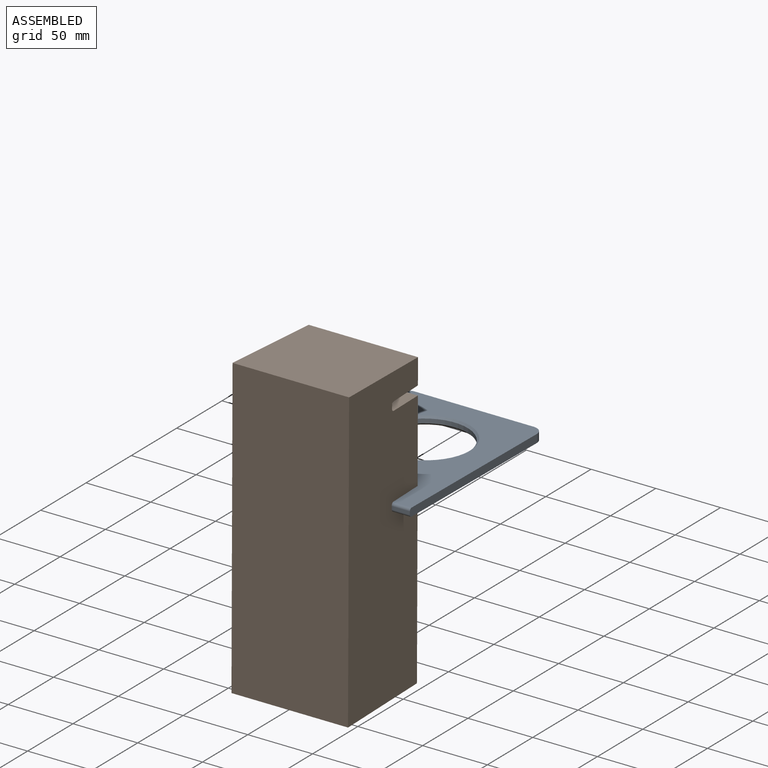
[diagram: assembled view]
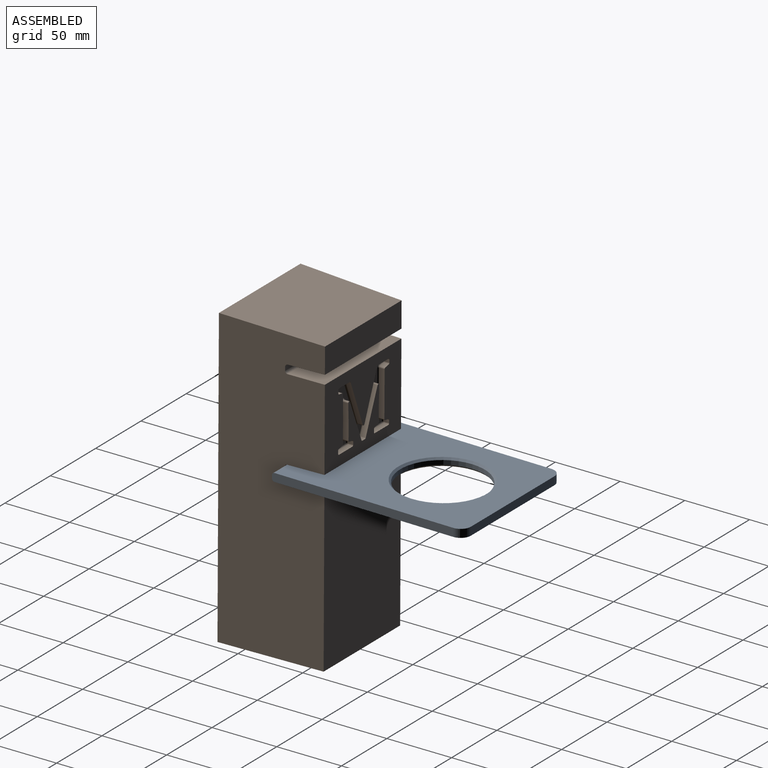
[diagram: assembled view, second angle]
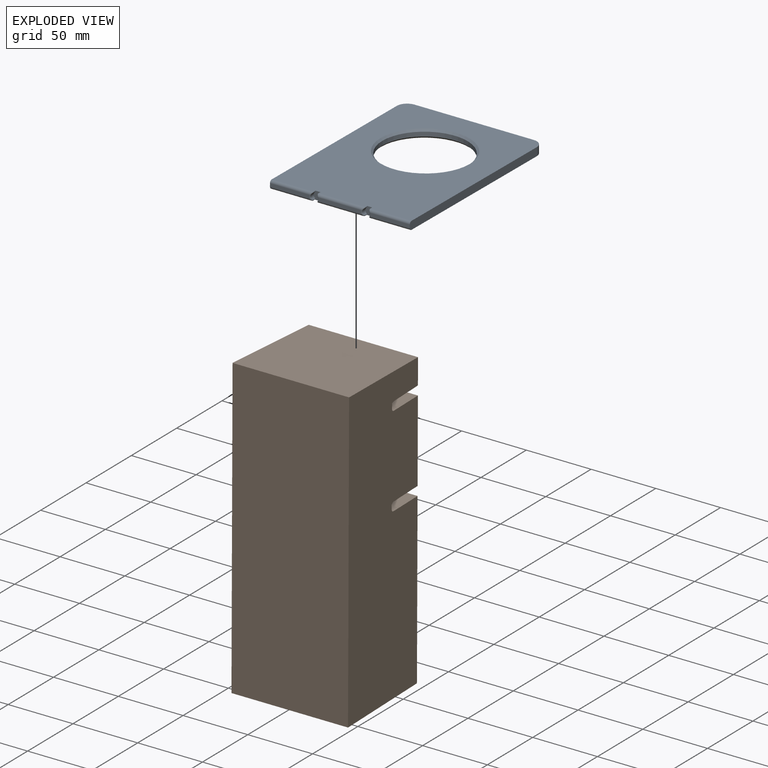
[diagram: exploded view]
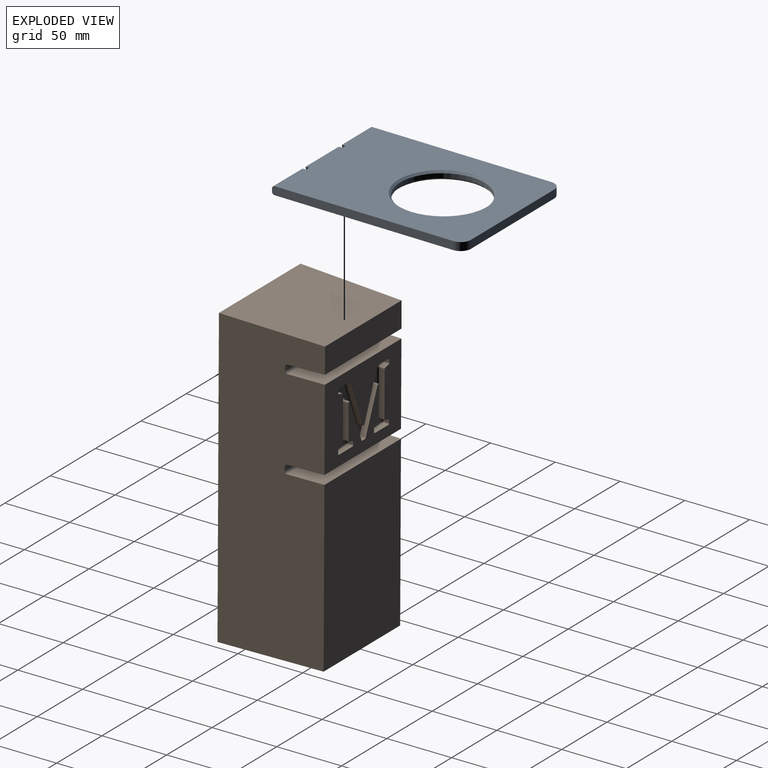
[diagram: exploded view, second angle]
ASSEMBLY  parts=2 mates=2
PART A: 61 faces, bbox 108x148x6.3 mm
  f0: plane 33.39x2.3mm, normal (0,1,0), area 76.2mm2, adj f5,f8,f43,f50
  f1: plane 30.69x2.3mm, normal (0,1,0), area 70.3mm2, adj f6,f11,f14,f36
  f2: plane 30.69x2.3mm, normal (0,1,0), area 70.3mm2, adj f7,f9,f12,f57
  f3: plane 146x108mm, normal (0,0,1), area 12036.8mm2, adj f8,f9,f10,f11,f12,f14,f15,f16
  f4: plane 146x108mm, normal (0,0,-1), area 12036.8mm2, adj f5,f6,f7,f10,f11,f12,f15,f16
  f5: cylinder r=2mm len=35.4mm, axis (-1,0,0), area 108.5mm2, adj f0,f4,f44,f45,f51,f52
  f6: cylinder r=2mm len=31.7mm, axis (-1,0,0), area 98.2mm2, adj f1,f4,f11,f37,f38
  f7: cylinder r=2mm len=31.7mm, axis (-1,0,0), area 98.2mm2, adj f2,f4,f12,f58,f59
  f8: cylinder r=2mm len=35.4mm, axis (1,0,0), area 108.5mm2, adj f0,f3,f41,f42,f48,f49
  f9: cylinder r=2mm len=31.7mm, axis (1,0,0), area 98.2mm2, adj f2,f3,f12,f55,f56
  f10: plane 92x6.3mm, normal (0,-1,0), area 579.6mm2, adj f3,f4,f15,f16
  f11: plane 140x6.3mm, normal (1,0,0), area 880.3mm2, adj f1,f3,f4,f6,f14,f15
  f12: plane 140x6.3mm, normal (-1,0,0), area 880.3mm2, adj f2,f3,f4,f7,f9,f16
  f13: cylinder r=32.75mm len=65.5mm, axis (0,0,-1), area 679.1mm2, adj f17,f18
  f14: cylinder r=2mm len=31.7mm, axis (1,0,0), area 98.2mm2, adj f1,f3,f11,f34,f35
  f15: cylinder r=8mm len=8mm, axis (0,0,1), area 79.2mm2, adj f3,f4,f10,f11
  f16: cylinder r=8mm len=8mm, axis (0,0,-1), area 79.2mm2, adj f3,f4,f10,f12
  f17: cone r=34.25mm half-angle=45deg, axis (0,0,-1), area 446.5mm2, adj f4,f13
  f18: cone r=32.75mm half-angle=45deg, axis (0,0,1), area 446.5mm2, adj f3,f13
  f19: plane 6.3x6mm, normal (0,1,0), area 31mm2, adj f3,f4,f20,f21,f22,f23,f24,f25
  f20: plane 2.7x0.18mm, normal (-0.71,0,0.71), area 0.6mm2, adj f19,f25,f45,f46
  f21: plane 2.7x0.18mm, normal (0.71,0,0.71), area 0.6mm2, adj f19,f22,f59,f60
  f22: cylinder r=3mm len=4.24mm, axis (0,1,0), area 15.8mm2, adj f19,f21,f23,f56,f57,f58
  f23: plane 2.7x0.18mm, normal (0.71,0,-0.71), area 0.6mm2, adj f19,f22,f54,f55
  f24: plane 2.7x0.18mm, normal (-0.71,0,-0.71), area 0.6mm2, adj f19,f25,f40,f41
  f25: cylinder r=3mm len=4.24mm, axis (0,1,0), area 15.8mm2, adj f19,f20,f24,f42,f43,f44
  f26: plane 6.3x6mm, normal (0,1,0), area 31mm2, adj f3,f4,f27,f28,f29,f30,f31,f32
  f27: plane 2.7x0.18mm, normal (0.71,0,0.71), area 0.6mm2, adj f26,f29,f52,f53
  f28: plane 2.7x0.18mm, normal (-0.71,0,0.71), area 0.6mm2, adj f26,f32,f38,f39
  f29: cylinder r=3mm len=4.24mm, axis (0,1,0), area 15.8mm2, adj f26,f27,f30,f49,f50,f51
  f30: plane 2.7x0.18mm, normal (0.71,0,-0.71), area 0.6mm2, adj f26,f29,f47,f48
  f31: plane 2.7x0.18mm, normal (-0.71,0,-0.71), area 0.6mm2, adj f26,f32,f33,f34
  f32: cylinder r=3mm len=4.24mm, axis (0,1,0), area 15.8mm2, adj f26,f28,f31,f35,f36,f37
  f33: cylinder r=0.5mm len=2mm, axis (0,-1,0), area 2.4mm2, adj f3,f26,f31,f34
  f34: bspline ~1.62x1.44mm, area 1.2mm2, adj f14,f31,f33,f35
  f35: bspline ~2.42x2.12mm, area 1.9mm2, adj f14,f32,f34,f36
  f36: torus R=3.5mm, axis (0,1,0), area 1.7mm2, adj f1,f32,f35,f37
  f37: bspline ~2.42x2.12mm, area 1.9mm2, adj f6,f32,f36,f38
  f38: bspline ~1.48x1.44mm, area 1.2mm2, adj f6,f28,f37,f39
  f39: cylinder r=0.5mm len=2mm, axis (0,1,0), area 2.4mm2, adj f4,f26,f28,f38
  f40: cylinder r=0.5mm len=2mm, axis (0,-1,0), area 2.4mm2, adj f3,f19,f24,f41
  f41: bspline ~1.62x1.44mm, area 1.2mm2, adj f8,f24,f40,f42
  f42: bspline ~2.42x2.12mm, area 1.9mm2, adj f8,f25,f41,f43
  f43: torus R=3.5mm, axis (0,1,0), area 1.7mm2, adj f0,f25,f42,f44
  f44: bspline ~2.42x2.12mm, area 1.9mm2, adj f5,f25,f43,f45
  f45: bspline ~1.48x1.44mm, area 1.2mm2, adj f5,f20,f44,f46
  f46: cylinder r=0.5mm len=2mm, axis (0,1,0), area 2.4mm2, adj f4,f19,f20,f45
  f47: cylinder r=0.5mm len=2mm, axis (0,1,0), area 2.4mm2, adj f3,f26,f30,f48
  f48: bspline ~1.48x1.44mm, area 1.2mm2, adj f8,f30,f47,f49
  f49: bspline ~2.42x2.12mm, area 1.9mm2, adj f8,f29,f48,f50
  f50: torus R=3.5mm, axis (0,1,0), area 1.7mm2, adj f0,f29,f49,f51
  f51: bspline ~2.32x1.92mm, area 1.9mm2, adj f5,f29,f50,f52
  f52: bspline ~1.62x1.44mm, area 1.2mm2, adj f5,f27,f51,f53
  f53: cylinder r=0.5mm len=2mm, axis (0,-1,0), area 2.4mm2, adj f4,f26,f27,f52
  f54: cylinder r=0.5mm len=2mm, axis (0,1,0), area 2.4mm2, adj f3,f19,f23,f55
  f55: bspline ~1.48x1.44mm, area 1.2mm2, adj f9,f23,f54,f56
  f56: bspline ~2.15x2.06mm, area 1.9mm2, adj f9,f22,f55,f57
  f57: torus R=3.5mm, axis (0,1,0), area 1.7mm2, adj f2,f22,f56,f58
  f58: bspline ~2.42x2.12mm, area 1.9mm2, adj f7,f22,f57,f59
  f59: bspline ~1.62x1.44mm, area 1.2mm2, adj f7,f21,f58,f60
  f60: cylinder r=0.5mm len=2mm, axis (0,-1,0), area 2.4mm2, adj f4,f19,f21,f59
PART B: 177 faces, bbox 90x80x230 mm
  f0: plane 54.06x44.25mm, normal (0,1,0), area 752.3mm2, adj f55,f56,f58,f59,f61,f62,f63,f66
  f1: cone r=0.9mm half-angle=1.1deg, axis (0,1,0), area 4.6mm2, adj f2,f3,f60,f109
  f2: plane 31.77x12.9mm, normal (0.93,0.02,0.37), area 137.6mm2, adj f1,f4,f58,f109
  f3: plane 4.02x2.82mm, normal (0,0.02,1), area 11.3mm2, adj f1,f5,f62,f109
  f4: cone r=1mm half-angle=1.1deg, axis (0,-1,0), area 11.7mm2, adj f2,f6,f56,f109
  f5: cone r=0.9mm half-angle=1.1deg, axis (0,1,0), area 4.6mm2, adj f3,f7,f64,f109
  f6: plane 13.58x4.02mm, normal (-1,0.02,-0.03), area 54.6mm2, adj f4,f8,f55,f109
  f7: plane 31.82x12.9mm, normal (-0.93,0.02,0.37), area 137.8mm2, adj f5,f9,f66,f109
  f8: cone r=0.9mm half-angle=1.1deg, axis (0,1,0), area 0.1mm2, adj f6,f10,f57,f109
  f9: cone r=1mm half-angle=1.1deg, axis (0,-1,0), area 11.7mm2, adj f7,f11,f68,f109
  f10: plane 12.59x4.02mm, normal (-1,0.02,0), area 50.6mm2, adj f8,f12,f59,f109
  f11: plane 13.63x4.02mm, normal (1,0.02,-0.03), area 54.8mm2, adj f9,f13,f70,f109
  f12: cone r=1.1mm half-angle=1.1deg, axis (0,-1,0), area 5.9mm2, adj f10,f14,f61,f109
  f13: cone r=0.9mm half-angle=1.1deg, axis (0,1,0), area 0.1mm2, adj f11,f15,f72,f109
  f14: plane 4.02x3.54mm, normal (-0.17,0.02,-0.99), area 14.4mm2, adj f12,f16,f63,f109
  f15: plane 12.59x4.02mm, normal (1,0.02,0), area 50.6mm2, adj f13,f17,f74,f109
  f16: cone r=0.9mm half-angle=1.1deg, axis (0,1,0), area 5.4mm2, adj f14,f18,f65,f109
  f17: cone r=1.1mm half-angle=1.1deg, axis (0,-1,0), area 5.9mm2, adj f15,f19,f76,f109
  f18: plane 4.02x2.18mm, normal (-1,0.02,0), area 8.7mm2, adj f16,f20,f67,f109
  f19: plane 4.02x3.54mm, normal (0.17,0.02,-0.99), area 14.4mm2, adj f17,f21,f78,f109
  f20: cone r=0.9mm half-angle=1.1deg, axis (0,1,0), area 6.1mm2, adj f18,f22,f69,f109
  f21: cone r=0.9mm half-angle=1.1deg, axis (0,1,0), area 5.4mm2, adj f19,f23,f80,f109
  f22: plane 14.67x4.02mm, normal (0,0.02,1), area 59mm2, adj f20,f24,f71,f109
  f23: plane 4.02x2.18mm, normal (1,0.02,0), area 8.7mm2, adj f21,f25,f82,f109
  f24: cone r=0.9mm half-angle=1.1deg, axis (0,1,0), area 6.1mm2, adj f22,f26,f73,f109
  f25: cone r=0.9mm half-angle=1.1deg, axis (0,1,0), area 6.1mm2, adj f23,f27,f84,f109
  f26: plane 4.02x2.18mm, normal (1,0.02,0), area 8.7mm2, adj f24,f28,f75,f109
  f27: plane 14.67x4.02mm, normal (0,0.02,1), area 59mm2, adj f25,f29,f86,f109
  f28: cone r=0.9mm half-angle=1.1deg, axis (0,1,0), area 5.4mm2, adj f26,f30,f77,f109
  f29: cone r=0.9mm half-angle=1.1deg, axis (0,1,0), area 6.1mm2, adj f27,f31,f88,f109
  f30: plane 4.02x3.54mm, normal (0.17,0.02,-0.99), area 14.4mm2, adj f28,f32,f79,f109
  f31: plane 4.02x2.18mm, normal (-1,0.02,0), area 8.7mm2, adj f29,f33,f90,f109
  f32: cone r=1.1mm half-angle=1.1deg, axis (0,-1,0), area 5.9mm2, adj f30,f34,f81,f109
  f33: cone r=0.9mm half-angle=1.1deg, axis (0,1,0), area 5.4mm2, adj f31,f35,f92,f109
  f34: plane 34.88x4.02mm, normal (1,0.02,0), area 140.2mm2, adj f32,f36,f83,f109
  f35: plane 4.02x3.54mm, normal (-0.17,0.02,-0.99), area 14.4mm2, adj f33,f37,f94,f109
  f36: cone r=1.1mm half-angle=1.1deg, axis (0,-1,0), area 5.9mm2, adj f34,f38,f85,f109
  f37: cone r=1.1mm half-angle=1.1deg, axis (0,-1,0), area 5.9mm2, adj f35,f39,f96,f109
  f38: plane 4.02x3.54mm, normal (0.17,0.02,0.99), area 14.4mm2, adj f36,f40,f87,f109
  f39: plane 34.88x4.02mm, normal (-1,0.02,0), area 140.2mm2, adj f37,f41,f98,f109
  f40: cone r=0.9mm half-angle=1.1deg, axis (0,1,0), area 5.4mm2, adj f38,f42,f89,f109
  f41: cone r=1.1mm half-angle=1.1deg, axis (0,-1,0), area 5.9mm2, adj f39,f43,f100,f109
  f42: plane 4.02x2.21mm, normal (1,0.02,0), area 8.9mm2, adj f40,f44,f91,f109
  f43: plane 4.02x3.54mm, normal (-0.17,0.02,0.99), area 14.4mm2, adj f41,f45,f102,f109
  f44: cone r=0.9mm half-angle=1.1deg, axis (0,1,0), area 6.1mm2, adj f42,f46,f93,f109
  f45: cone r=0.9mm half-angle=1.1deg, axis (0,1,0), area 5.4mm2, adj f43,f47,f104,f109
  f46: plane 11.55x4.02mm, normal (0,0.02,-1), area 46.4mm2, adj f44,f48,f95,f109
  f47: plane 4.02x2.21mm, normal (-1,0.02,0), area 8.9mm2, adj f45,f49,f106,f109
  f48: cone r=0.9mm half-angle=1.1deg, axis (0,1,0), area 4.6mm2, adj f46,f50,f97,f109
  f49: cone r=0.9mm half-angle=1.1deg, axis (0,1,0), area 6.1mm2, adj f47,f51,f108,f109
  f50: plane 34.97x13.78mm, normal (-0.93,0.02,-0.37), area 150.9mm2, adj f48,f52,f99,f109
  f51: plane 11.58x4.02mm, normal (0,0.02,-1), area 46.5mm2, adj f49,f53,f107,f109
  f52: cone r=1mm half-angle=1.1deg, axis (0,-1,0), area 10mm2, adj f50,f54,f101,f109
  f53: cone r=0.9mm half-angle=1.1deg, axis (0,1,0), area 4.6mm2, adj f51,f54,f105,f109
  f54: plane 34.97x13.74mm, normal (0.93,0.02,-0.36), area 150.9mm2, adj f52,f53,f103,f109
  f55: cylinder r=1mm len=13.61mm, axis (0.03,0,-1), area 21.1mm2, adj f0,f6,f56,f57
  f56: torus R=2.08mm, axis (0,-1,0), area 6.3mm2, adj f0,f4,f55,f58
  f57: bspline ~1x0.98mm, area 0mm2, adj f8,f55,f59
  f58: cylinder r=1mm len=32.11mm, axis (-0.37,0,0.93), area 53mm2, adj f0,f2,f56,f60
  f59: cylinder r=1mm len=12.59mm, axis (0,0,-1), area 19.5mm2, adj f0,f10,f57,f61
  f60: bspline ~1x0.98mm, area 0.7mm2, adj f1,f58,f62
  f61: torus R=2.08mm, axis (0,-1,0), area 3.1mm2, adj f0,f12,f59,f63
  f62: cylinder r=1mm len=2.82mm, axis (-1,0,0), area 4.3mm2, adj f0,f3,f60,f64
  f63: cylinder r=1mm len=3.7mm, axis (0.99,0,-0.17), area 5.5mm2, adj f0,f14,f61,f65
  f64: bspline ~1x0.98mm, area 0.7mm2, adj f5,f62,f66
  f65: bspline ~1x0.98mm, area 0.8mm2, adj f16,f63,f67
  f66: cylinder r=1mm len=32.16mm, axis (-0.37,0,-0.93), area 53.1mm2, adj f0,f7,f64,f68
  f67: cylinder r=1mm len=2.18mm, axis (0,0,-1), area 3.3mm2, adj f0,f18,f65,f69
  f68: torus R=2.08mm, axis (0,-1,0), area 6.3mm2, adj f0,f9,f66,f70
  f69: bspline ~1x1mm, area 0.9mm2, adj f20,f67,f71
  f70: cylinder r=1mm len=13.66mm, axis (0.03,0,1), area 21.1mm2, adj f0,f11,f68,f72
  f71: cylinder r=1mm len=14.67mm, axis (-1,0,0), area 22.6mm2, adj f0,f22,f69,f73
  f72: bspline ~1x0.98mm, area 0mm2, adj f13,f70,f74
  f73: bspline ~1x1mm, area 0.9mm2, adj f24,f71,f75
  f74: cylinder r=1mm len=12.59mm, axis (0,0,1), area 19.5mm2, adj f0,f15,f72,f76
  f75: cylinder r=1mm len=2.18mm, axis (0,0,1), area 3.3mm2, adj f0,f26,f73,f77
  f76: torus R=2.08mm, axis (0,-1,0), area 3.1mm2, adj f0,f17,f74,f78
  f77: bspline ~1x0.98mm, area 0.8mm2, adj f28,f75,f79
  f78: cylinder r=1mm len=3.7mm, axis (0.99,0,0.17), area 5.5mm2, adj f0,f19,f76,f80
  f79: cylinder r=1mm len=3.7mm, axis (0.99,0,0.17), area 5.5mm2, adj f0,f30,f77,f81
  f80: bspline ~1x0.98mm, area 0.8mm2, adj f21,f78,f82
  f81: torus R=2.08mm, axis (0,-1,0), area 3.1mm2, adj f0,f32,f79,f83
  f82: cylinder r=1mm len=2.18mm, axis (0,0,1), area 3.3mm2, adj f0,f23,f80,f84
  f83: cylinder r=1mm len=34.88mm, axis (0,0,1), area 54.1mm2, adj f0,f34,f81,f85
  f84: bspline ~1x1mm, area 0.9mm2, adj f25,f82,f86
  f85: torus R=2.08mm, axis (0,-1,0), area 3.1mm2, adj f0,f36,f83,f87
  f86: cylinder r=1mm len=14.67mm, axis (-1,0,0), area 22.6mm2, adj f0,f27,f84,f88
  f87: cylinder r=1mm len=3.7mm, axis (-0.99,0,0.17), area 5.5mm2, adj f0,f38,f85,f89
  f88: bspline ~1x1mm, area 0.9mm2, adj f29,f86,f90
  f89: bspline ~1x0.98mm, area 0.8mm2, adj f40,f87,f91
  f90: cylinder r=1mm len=2.18mm, axis (0,0,-1), area 3.3mm2, adj f0,f31,f88,f92
  f91: cylinder r=1mm len=2.21mm, axis (0,0,1), area 3.3mm2, adj f0,f42,f89,f93
  f92: bspline ~1x0.98mm, area 0.8mm2, adj f33,f90,f94
  f93: bspline ~1x1mm, area 0.9mm2, adj f44,f91,f95
  f94: cylinder r=1mm len=3.7mm, axis (0.99,0,-0.17), area 5.5mm2, adj f0,f35,f92,f96
  f95: cylinder r=1mm len=11.55mm, axis (1,0,0), area 17.8mm2, adj f0,f46,f93,f97
  f96: torus R=2.08mm, axis (0,-1,0), area 3.1mm2, adj f0,f37,f94,f98
  f97: bspline ~1x0.98mm, area 0.7mm2, adj f48,f95,f99
  f98: cylinder r=1mm len=34.88mm, axis (0,0,-1), area 54.1mm2, adj f0,f39,f96,f100
  f99: cylinder r=1mm len=35.31mm, axis (0.37,0,-0.93), area 58.2mm2, adj f0,f50,f97,f101
  f100: torus R=2.08mm, axis (0,-1,0), area 3.1mm2, adj f0,f41,f98,f102
  f101: torus R=2.08mm, axis (0,-1,0), area 5.4mm2, adj f0,f52,f99,f103
  f102: cylinder r=1mm len=3.7mm, axis (-0.99,0,-0.17), area 5.5mm2, adj f0,f43,f100,f104
  f103: cylinder r=1mm len=35.31mm, axis (0.36,0,0.93), area 58.1mm2, adj f0,f54,f101,f105
  f104: bspline ~1x0.98mm, area 0.8mm2, adj f45,f102,f106
  f105: bspline ~1x0.98mm, area 0.7mm2, adj f53,f103,f107
  f106: cylinder r=1mm len=2.21mm, axis (0,0,-1), area 3.3mm2, adj f0,f47,f104,f108
  f107: cylinder r=1mm len=11.58mm, axis (1,0,0), area 17.8mm2, adj f0,f51,f105,f108
  f108: bspline ~1x1mm, area 0.9mm2, adj f49,f106,f107
  f109: plane 84.41x63mm, normal (0,1,0), area 4143.1mm2, adj f1,f2,f3,f4,f5,f6,f7,f8
  f110: plane 230.03x80.03mm, normal (1,0.03,0), area 17891.5mm2, adj f109,f112,f113,f114,f117,f118,f119,f146
  f111: plane 230.03x80.03mm, normal (-1,0.03,0), area 17891.5mm2, adj f109,f112,f113,f114,f116,f117,f119,f148
  f112: plane 90x80mm, normal (0,0,-1), area 6976.5mm2, adj f110,f111,f174,f176
  f113: cylinder r=2mm len=86.51mm, axis (-1,0,0), area 244.5mm2, adj f110,f111,f115,f116,f117,f118,f133,f134
  f114: cylinder r=2mm len=86.51mm, axis (-1,0,0), area 244.5mm2, adj f110,f111,f115,f116,f118,f119,f128,f129
  f115: plane 32x2.72mm, normal (0,1,0), area 86.2mm2, adj f113,f114,f132,f139
  f116: plane 19.25x2.72mm, normal (0,1,0), area 52mm2, adj f111,f113,f114,f131
  f117: plane 86.37x28.01mm, normal (0,0,-1), area 2391.8mm2, adj f109,f110,f111,f113
  f118: plane 19.25x2.72mm, normal (0,1,0), area 52mm2, adj f110,f113,f114,f140
  f119: plane 86.37x28.01mm, normal (0,0,1), area 2391.8mm2, adj f110,f111,f114,f174
  f120: cylinder r=3.25mm len=3.46mm, axis (0,1,0), area 0mm2, adj f122,f135
  f121: plane 4.29x4.29mm, normal (0,1,0), area 14.5mm2, adj f145
  f122: cone r=3.25mm half-angle=1.5deg, axis (0,1,0), area 71.3mm2, adj f120,f123,f128,f129,f130,f131,f132,f133
  f123: cylinder r=3.25mm len=3.46mm, axis (0,1,0), area 0mm2, adj f122,f128
  f124: cylinder r=3.25mm len=3.46mm, axis (0,1,0), area 0mm2, adj f126,f143
  f125: plane 4.29x4.29mm, normal (0,1,0), area 14.5mm2, adj f144
  f126: cone r=3.25mm half-angle=1.5deg, axis (0,1,0), area 71.3mm2, adj f124,f127,f136,f137,f138,f139,f140,f141
  f127: cylinder r=3.25mm len=3.46mm, axis (0,1,0), area 0mm2, adj f126,f136
  f128: bspline ~5.23x1.72mm, area 2.5mm2, adj f114,f122,f123,f129,f130
  f129: bspline ~2.63x2.3mm, area 2.8mm2, adj f114,f122,f128,f131
  f130: bspline ~2.63x2.3mm, area 2.8mm2, adj f114,f122,f128,f132
  f131: torus R=4.22mm, axis (0,1,0), area 3.6mm2, adj f116,f122,f129,f133
  f132: torus R=4.22mm, axis (0,1,0), area 3.6mm2, adj f115,f122,f130,f134
  f133: bspline ~2.63x2.3mm, area 2.8mm2, adj f113,f122,f131,f135
  f134: bspline ~2.63x2.3mm, area 2.8mm2, adj f113,f122,f132,f135
  f135: bspline ~5.23x1.72mm, area 2.5mm2, adj f113,f120,f122,f133,f134
  f136: bspline ~5.23x1.72mm, area 2.5mm2, adj f114,f126,f127,f137,f138
  f137: bspline ~2.63x2.3mm, area 2.8mm2, adj f114,f126,f136,f139
  f138: bspline ~2.63x2.3mm, area 2.8mm2, adj f114,f126,f136,f140
  f139: torus R=4.22mm, axis (0,1,0), area 3.6mm2, adj f115,f126,f137,f141
  f140: torus R=4.22mm, axis (0,1,0), area 3.6mm2, adj f118,f126,f138,f142
  f141: bspline ~2.63x2.3mm, area 2.8mm2, adj f113,f126,f139,f143
  f142: bspline ~2.63x2.3mm, area 2.8mm2, adj f113,f126,f140,f143
  f143: bspline ~5.23x1.72mm, area 2.5mm2, adj f113,f124,f126,f141,f142
  f144: torus R=2.14mm, axis (0,-1,0), area 26.9mm2, adj f125,f126
  f145: torus R=2.14mm, axis (0,-1,0), area 26.9mm2, adj f121,f122
  f146: plane 21.52x5.5mm, normal (0,1,0), area 55.9mm2, adj f110,f151,f152,f158,f166,f170
  f147: plane 34.27x5.5mm, normal (0,1,0), area 90.2mm2, adj f151,f152,f154,f161,f165,f168
  f148: plane 86.37x28.01mm, normal (0,0,-1), area 2391.8mm2, adj f110,f111,f151,f175
  f149: plane 19.25x2.72mm, normal (0,1,0), area 52mm2, adj f111,f151,f152,f163
  f150: plane 86.37x28.01mm, normal (0,0,1), area 2391.8mm2, adj f109,f110,f111,f152
  f151: cylinder r=2mm len=86.51mm, axis (-1,0,0), area 243.9mm2, adj f110,f111,f146,f147,f148,f149,f161,f162
  f152: cylinder r=2mm len=86.51mm, axis (-1,0,0), area 243.9mm2, adj f110,f111,f146,f147,f149,f150,f164,f165
  f153: cylinder r=3.25mm len=3.46mm, axis (0,1,0), area 0mm2, adj f154,f161
  f154: cone r=3.25mm half-angle=1.5deg, axis (0,1,0), area 76.1mm2, adj f147,f153,f156,f161,f162,f163,f164,f165
  f155: plane 4.29x4.29mm, normal (0,1,0), area 14.5mm2, adj f172
  f156: cylinder r=3.25mm len=3.46mm, axis (0,1,0), area 2.6mm2, adj f154,f165
  f157: cylinder r=3.25mm len=3.46mm, axis (0,1,0), area 0mm2, adj f158,f166
  f158: cone r=3.25mm half-angle=1.5deg, axis (0,1,0), area 76.1mm2, adj f146,f157,f160,f166,f167,f168,f169,f170
  f159: plane 4.29x4.29mm, normal (0,1,0), area 14.5mm2, adj f171
  f160: cylinder r=3.25mm len=3.46mm, axis (0,1,0), area 2.6mm2, adj f158,f170
  f161: bspline ~6.68x2.47mm, area 3.6mm2, adj f147,f151,f153,f154,f162
  f162: bspline ~2.63x2.3mm, area 2.8mm2, adj f151,f154,f161,f163
  f163: torus R=4.22mm, axis (0,-1,0), area 3.6mm2, adj f149,f154,f162,f164
  f164: bspline ~2.63x2.3mm, area 2.8mm2, adj f152,f154,f163,f165
  f165: bspline ~6.77x2.58mm, area 3.6mm2, adj f147,f152,f154,f156,f164
  f166: bspline ~6.68x2.47mm, area 3.6mm2, adj f146,f151,f157,f158,f167
  f167: bspline ~2.63x2.3mm, area 2.8mm2, adj f151,f158,f166,f168
  f168: torus R=4.22mm, axis (0,-1,0), area 3.6mm2, adj f147,f158,f167,f169
  f169: bspline ~2.63x2.3mm, area 2.8mm2, adj f152,f158,f168,f170
  f170: bspline ~6.77x2.58mm, area 3.6mm2, adj f146,f152,f158,f160,f169
  f171: torus R=2.14mm, axis (0,-1,0), area 26.9mm2, adj f158,f159
  f172: torus R=2.14mm, axis (0,-1,0), area 26.9mm2, adj f154,f155
  f173: plane 90x80mm, normal (0,0.03,1), area 6980.8mm2, adj f110,f111,f175,f176
  f174: plane 130.5x84.41mm, normal (0,1,0), area 11015.9mm2, adj f110,f111,f112,f119
  f175: plane 84.41x19.71mm, normal (0,1,0), area 1663.5mm2, adj f110,f111,f148,f173
  f176: plane 230x90mm, normal (0,-1,0), area 20700mm2, adj f110,f111,f112,f173
PLACE A rot(axis=(0,0,-1),180deg) t=(10.54,230.48,6.47)mm
PLACE B rot(axis=(-1,0.03,0),0.3deg) t=(7.34,86.42,-7.99)mm fixed
MATE planar B.f119 <-> A.f4  axis (0,0.01,1) through (7.34,152.44,7.26)mm
MATE cylindrical B.f114 <-> A.f5  axis (-1,0,0) through (51.11,138.51,9.39)mm
